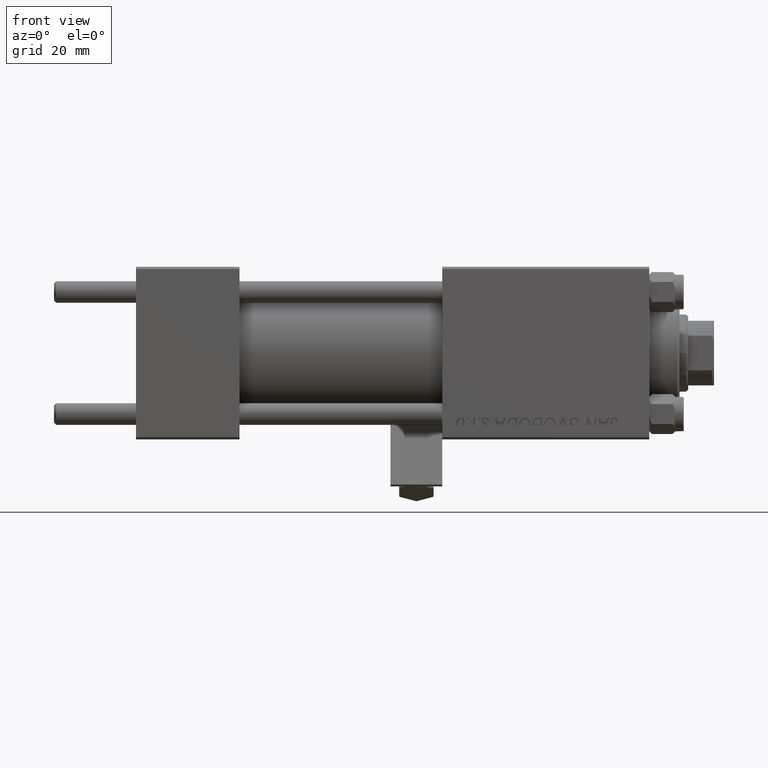
[diagram: clean part render]
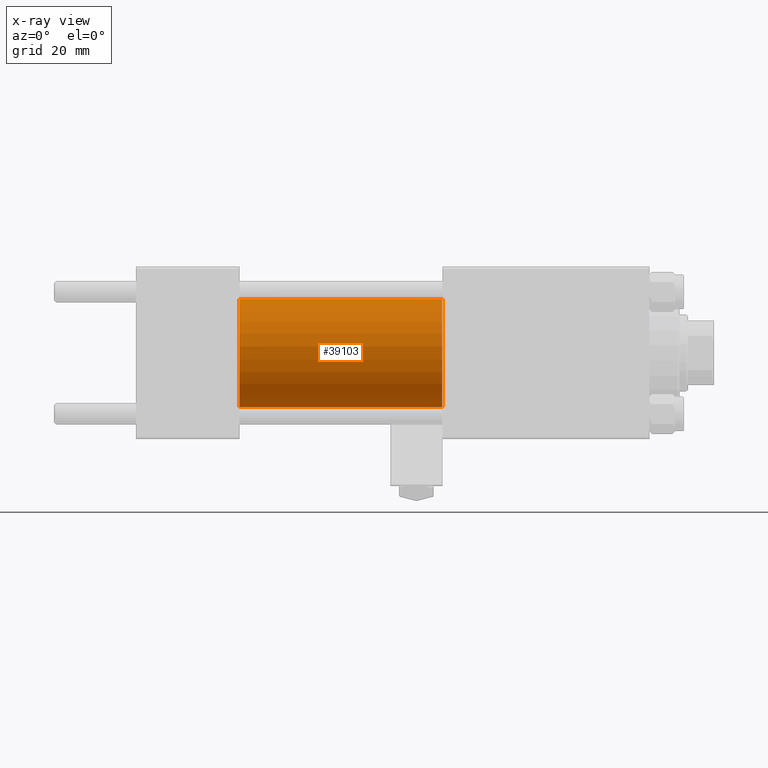
[diagram: x-ray — body ghosted, one internal face saturated and labeled with its STEP entity id]
A machine part, front view, then the same camera in x-ray: the body is ghosted and one INTERNAL B-rep face — a face not visible from any outside direction — is saturated and labeled: STEP entity #39103.
In plain terms, the highlighted cylindrical surface (partial cylindrical patch) has radius 12.5 mm, axis along (-1, -0, -0).
Its self-contained STEP definition (entity closure, byte-faithful):
#827 = DIRECTION ( 'NONE',  ( -1.000000000000000000, -0.000000000000000000, -0.000000000000000000 ) ) ;
#3745 = VECTOR ( 'NONE', #20057, 1000.000000000000000 ) ;
#4714 = AXIS2_PLACEMENT_3D ( 'NONE', #37528, #18504, #37268 ) ;
#4946 = CARTESIAN_POINT ( 'NONE',  ( 24.00000000000000000, 1.530808498934191127E-15, -12.49999999999999645 ) ) ;
#7218 = CARTESIAN_POINT ( 'NONE',  ( 24.00000000000000000, 0.000000000000000000, 12.49999999999999645 ) ) ;
#9265 = VERTEX_POINT ( 'NONE', #4946 ) ;
#9718 = LINE ( 'NONE', #36004, #13005 ) ;
#10288 = DIRECTION ( 'NONE',  ( -1.000000000000000000, -0.000000000000000000, -0.000000000000000000 ) ) ;
#13005 = VECTOR ( 'NONE', #827, 1000.000000000000000 ) ;
#13522 = CARTESIAN_POINT ( 'NONE',  ( 71.00000000000001421, 0.000000000000000000, 12.49999999999999645 ) ) ;
#15680 = ORIENTED_EDGE ( 'NONE', *, *, #30450, .T. ) ;
#16458 = LINE ( 'NONE', #43437, #3745 ) ;
#17146 = ORIENTED_EDGE ( 'NONE', *, *, #24404, .T. ) ;
#17862 = VERTEX_POINT ( 'NONE', #32122 ) ;
#18504 = DIRECTION ( 'NONE',  ( 1.000000000000000000, 0.000000000000000000, 0.000000000000000000 ) ) ;
#19072 = EDGE_CURVE ( 'NONE', #19458, #20269, #16458, .T. ) ;
#19458 = VERTEX_POINT ( 'NONE', #13522 ) ;
#20057 = DIRECTION ( 'NONE',  ( -1.000000000000000000, -0.000000000000000000, -0.000000000000000000 ) ) ;
#20269 = VERTEX_POINT ( 'NONE', #7218 ) ;
#22711 = EDGE_CURVE ( 'NONE', #20269, #9265, #27676, .T. ) ;
#22786 = AXIS2_PLACEMENT_3D ( 'NONE', #49968, #23498, #39180 ) ;
#23498 = DIRECTION ( 'NONE',  ( 1.000000000000000000, 0.000000000000000000, 0.000000000000000000 ) ) ;
#24404 = EDGE_CURVE ( 'NONE', #19458, #17862, #40024, .T. ) ;
#25942 = CARTESIAN_POINT ( 'NONE',  ( 71.00000000000001421, 0.000000000000000000, 0.000000000000000000 ) ) ;
#27676 = CIRCLE ( 'NONE', #4714, 12.49999999999999645 ) ;
#28798 = EDGE_LOOP ( 'NONE', ( #17146, #15680, #30545, #43581 ) ) ;
#30316 = DIRECTION ( 'NONE',  ( 0.000000000000000000, 0.000000000000000000, 1.000000000000000000 ) ) ;
#30450 = EDGE_CURVE ( 'NONE', #17862, #9265, #9718, .T. ) ;
#30545 = ORIENTED_EDGE ( 'NONE', *, *, #22711, .F. ) ;
#30818 = FACE_OUTER_BOUND ( 'NONE', #28798, .T. ) ;
#32122 = CARTESIAN_POINT ( 'NONE',  ( 71.00000000000001421, 1.530808498934191127E-15, -12.49999999999999645 ) ) ;
#36004 = CARTESIAN_POINT ( 'NONE',  ( 71.00000000000001421, 1.530808498934191127E-15, -12.49999999999999645 ) ) ;
#37268 = DIRECTION ( 'NONE',  ( 0.000000000000000000, 0.000000000000000000, -1.000000000000000000 ) ) ;
#37528 = CARTESIAN_POINT ( 'NONE',  ( 24.00000000000000000, 0.000000000000000000, 0.000000000000000000 ) ) ;
#39103 = ADVANCED_FACE ( 'NONE', ( #30818 ), #50572, .F. ) ;
#39180 = DIRECTION ( 'NONE',  ( 0.000000000000000000, 0.000000000000000000, -1.000000000000000000 ) ) ;
#40024 = CIRCLE ( 'NONE', #22786, 12.49999999999999645 ) ;
#42885 = AXIS2_PLACEMENT_3D ( 'NONE', #25942, #10288, #30316 ) ;
#43437 = CARTESIAN_POINT ( 'NONE',  ( 71.00000000000001421, 0.000000000000000000, 12.49999999999999645 ) ) ;
#43581 = ORIENTED_EDGE ( 'NONE', *, *, #19072, .F. ) ;
#49968 = CARTESIAN_POINT ( 'NONE',  ( 71.00000000000001421, 0.000000000000000000, 0.000000000000000000 ) ) ;
#50572 = CYLINDRICAL_SURFACE ( 'NONE', #42885, 12.49999999999999645 ) ;